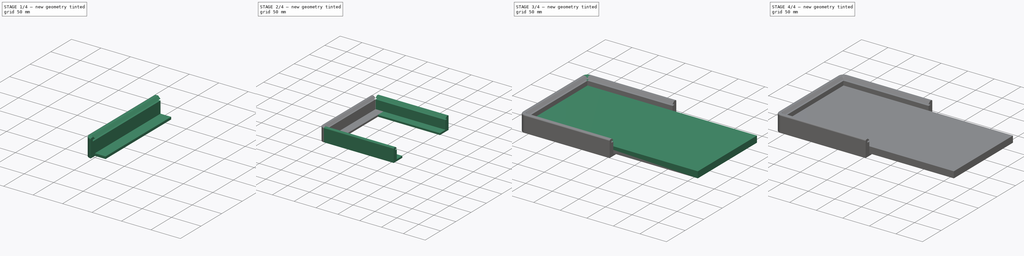
[diagram: build sequence overview — one tinted view per stage of 4, left to right]
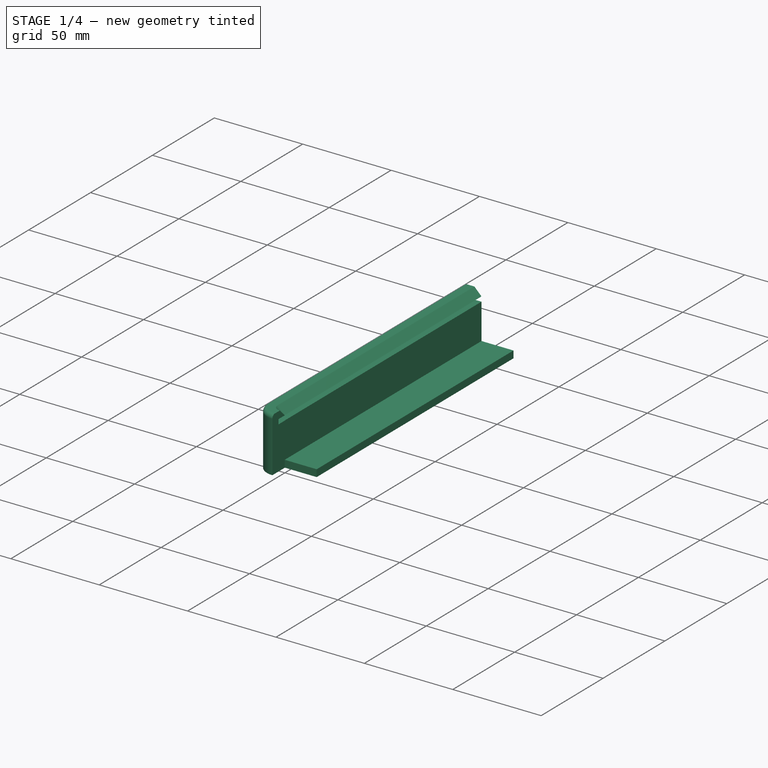
[diagram: stage 1 of 4 — iso view after this stage's code; geometry added in this stage tinted green]
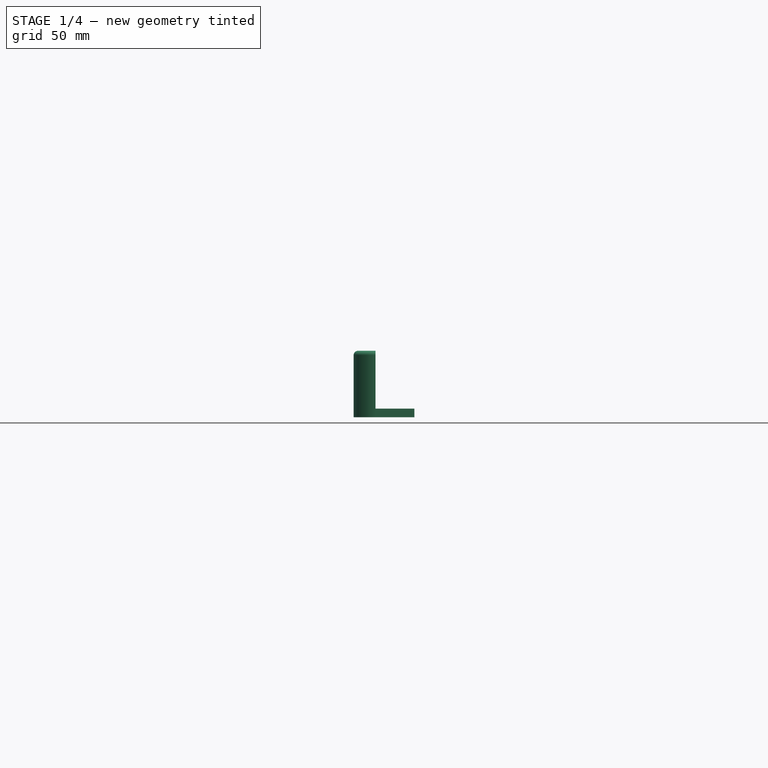
[diagram: stage 1 of 4 — front view after this stage's code; geometry added in this stage tinted green]
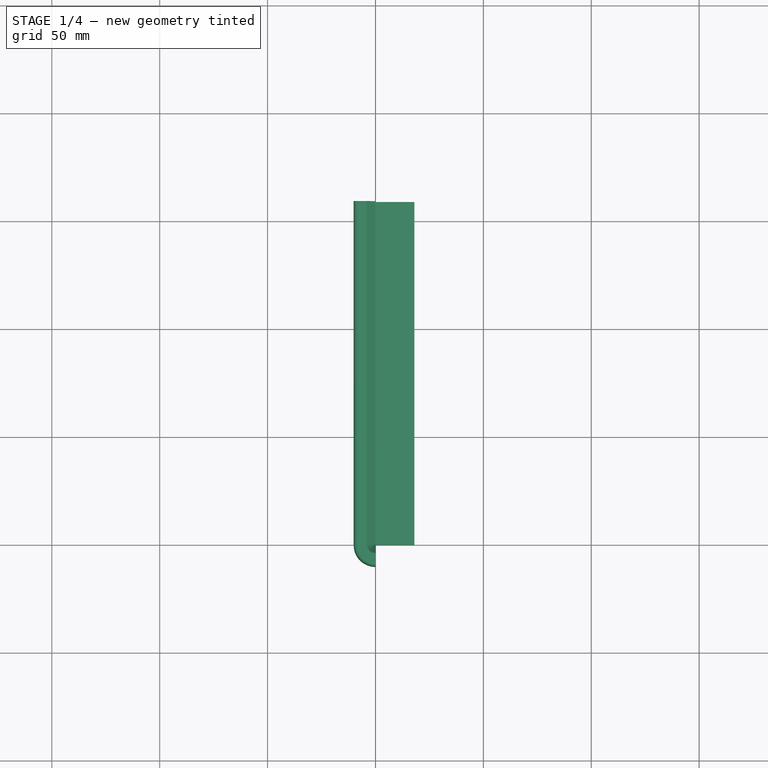
[diagram: stage 1 of 4 — top view after this stage's code; geometry added in this stage tinted green]
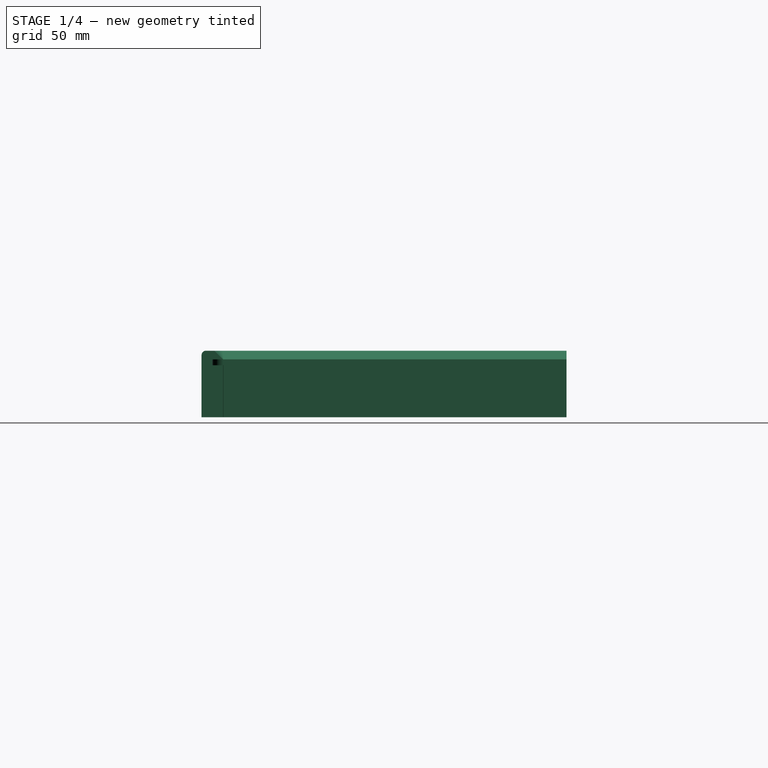
[diagram: stage 1 of 4 — right view after this stage's code; geometry added in this stage tinted green]
FCSTD DOCUMENT  (FreeCAD 0.18R4 (GitTag))
Label: TAM TAM encadrement
License: All rights reserved
LicenseURL: http://en.wikipedia.org/wiki/All_rights_reserved
objects: Sketcher::SketchObject×9, PartDesign::Pad×4, PartDesign::Pocket×3, PartDesign::Body×2, PartDesign::Revolution×2, Spreadsheet::Sheet×1
note: 29 computed .brp shape members not serialized (recipe doc carries the construction recipe); baked Part::Feature solids carry a one-line shape summary decoded from their .brp

FEATURE [PartDesign::Body] Body  label="Ecran002"
  Group = -> [Sketch,Pad,Sketch001,Pocket,Sketch002,Pocket001]
  Origin = -> Origin
  Tip = -> Pocket001
FEATURE [Spreadsheet::Sheet] Spreadsheet  label="Dim"
  cells = A1=Marge verti; B1==0.1mm; A2=Marge horiz; B2==0.1mm; A3=Hauteur grille; B3==8mm; A4=Epaisseur plexi; B4==2.5mm; A5=Débord plexi; B5==5mm; A6=Trous de vis; A7=- Distance bord horizontal; B7==35.5mm; A8=- Distance bord vertical; B8==70mm; A9=- Distance bord; B9==8mm; A10=- Diamètre; B10==1.5mm; A12=Diamètre trous fixation; B12==2mm
FEATURE [Sketcher::SketchObject] Sketch010  label="Profil bord court"
  MapMode = 5
  Placement = pos=(0,0,0) rot=(1,0,0;1.5708rad)
  Support = -> [XZ_Plane001]
  expr: Constraints[20] = 20mm + Spreadsheet.B1
  expr: Constraints[22] = Spreadsheet.B4 + 2 * Spreadsheet.B1
  expr: Constraints[17] = Spreadsheet.B2
  expr: Constraints[18] = 18mm + Spreadsheet.B2
  expr: Constraints[21] = Spreadsheet.B5
  expr: Constraints[16] = Spreadsheet.B1
  sketch-geometry (11):
    g0: LineSegment StartX=-0.1 StartY=20 StartZ=0 EndX=-0.1 EndY=-0.1 EndZ=0
    g1: LineSegment StartX=-0.1 StartY=-0.1 StartZ=0 EndX=18 EndY=-0.1 EndZ=0
    g2: LineSegment StartX=18 StartY=-0.1 StartZ=0 EndX=18 EndY=-4.1 EndZ=0
    g3: LineSegment StartX=18 StartY=-4.1 StartZ=0 EndX=0.067429 EndY=-4.1 EndZ=0
    g4: LineSegment StartX=-10.1 StartY=-24.1 StartZ=0 EndX=-10.1 EndY=24.7 EndZ=0
    g5: LineSegment StartX=-0.1 StartY=20 StartZ=0 EndX=-5.1 EndY=20 EndZ=0
    g6: LineSegment StartX=-5.1 StartY=20 StartZ=0 EndX=-5.1 EndY=22.7 EndZ=0
    g7: LineSegment StartX=-5.1 StartY=22.7 StartZ=0 EndX=-0.1 EndY=22.7 EndZ=0
    g8: LineSegment StartX=-0.1 StartY=22.7 StartZ=0 EndX=-4.1 EndY=26.7 EndZ=0
    g9: LineSegment StartX=-4.1 StartY=26.7 StartZ=0 EndX=-8.1 EndY=26.7 EndZ=0
    g10: ArcOfCircle CenterX=-8.1 CenterY=24.7 CenterZ=0 NormalX=0 NormalY=0 NormalZ=1 AngleXU=0 Radius=2 StartAngle=1.5708 EndAngle=3.14159
  constraints (34):
    c: Coincident(g0,g1)
    c: Coincident(g1,g2)
    c: Coincident(g2,g3)
    c: Coincident(g5,g6)
    c: Coincident(g6,g7)
    c: Coincident(g7,g8)
    c: Coincident(g8,g9)
    c: Vertical(g0)
    c: Vertical(g4)
    c: Vertical(g6)
    c: Vertical(g2)
    c: Horizontal(g5)
    c: Horizontal(g7)
    c: Horizontal(g9)
    c: Horizontal(g1)
    c: Horizontal(g3)
    c: DistanceY(g0,g-1) = 0.1
    c: DistanceX(g0,g-1) = 0.1
    c: DistanceX(g1,g1) = 18.1
    c: Coincident(g0,g5)
    c: DistanceY(g0,g0) = 20.1
    c: DistanceX(g5,g5) = 5
    c: DistanceY(g6,g6) = 2.7
    c: Vertical(g7,g0)
    c: DistanceX(g8,g8) = 4
    c: DistanceY(g8,g8) = 4
    c: DistanceY(g2,g2) = 4
    c: Vertical(g10,g10)
    c: Coincident(g9,g10)
    c: Coincident(g10,g4)
    c: DistanceX(g9,g9) = 4
    c: DistanceX(g4,g10) = 2
    c: Horizontal(g10,g4)
    c: DistanceY(g4,g2) = 20
FEATURE [PartDesign::Pad] Pad001
  Length = 159
  Length2 = 100
  Placement = pos=(0,0,0) rot=(1,0,0;1.5708rad)
  Profile = -> Sketch010
  Reversed = true
  Type = 0
FEATURE [Sketcher::SketchObject] Sketch011  label="Profil angle"
  ExternalGeometry = -> [Pad001]
  MapMode = 5
  Placement = pos=(0,0,0) rot=(1,0,0;1.5708rad)
  Support = -> [XZ_Plane001]
  expr: Constraints[13] = 24mm + Spreadsheet.B1
  expr: Constraints[15] = Spreadsheet.B4 + 2 * Spreadsheet.B1
  expr: Constraints[11] = Spreadsheet.B2
  expr: Constraints[14] = Spreadsheet.B5
  sketch-geometry (9):
    g0: LineSegment StartX=-0.1 StartY=20 StartZ=0 EndX=-0.1 EndY=-4.1 EndZ=0
    g1: LineSegment StartX=-0.1 StartY=-4.1 StartZ=0 EndX=-10.1 EndY=-4.1 EndZ=0
    g2: LineSegment StartX=-10.1 StartY=-4.1 StartZ=0 EndX=-10.1 EndY=24.7 EndZ=0
    g3: LineSegment StartX=-0.1 StartY=20 StartZ=0 EndX=-5.1 EndY=20 EndZ=0
    g4: LineSegment StartX=-5.1 StartY=20 StartZ=0 EndX=-5.1 EndY=22.7 EndZ=0
    g5: LineSegment StartX=-5.1 StartY=22.7 StartZ=0 EndX=-0.1 EndY=22.7 EndZ=0
    g6: LineSegment StartX=-0.1 StartY=22.7 StartZ=0 EndX=-4.1 EndY=26.7 EndZ=0
    g7: LineSegment StartX=-4.1 StartY=26.7 StartZ=0 EndX=-8.1 EndY=26.7 EndZ=0
    g8: ArcOfCircle CenterX=-8.1 CenterY=24.7 CenterZ=0 NormalX=0 NormalY=0 NormalZ=1 AngleXU=0 Radius=2 StartAngle=1.5708 EndAngle=3.14159
  constraints (27):
    c: Coincident(g1,g2)
    c: Coincident(g3,g4)
    c: Coincident(g4,g5)
    c: Coincident(g5,g6)
    c: Coincident(g6,g7)
    c: Vertical(g0)
    c: Vertical(g2)
    c: Vertical(g4)
    c: Horizontal(g3)
    c: Horizontal(g5)
    c: Horizontal(g7)
    c: DistanceX(g0,g-1) = 0.1
    c: Coincident(g0,g3)
    c: DistanceY(g0,g0) = 24.1
    c: DistanceX(g3,g3) = 5
    c: DistanceY(g4,g4) = 2.7
    c: Vertical(g5,g0)
    c: DistanceX(g6,g6) = 4
    c: DistanceY(g6,g6) = 4
    c: Vertical(g8,g8)
    c: Coincident(g7,g8)
    c: Coincident(g8,g2)
    c: DistanceX(g7,g7) = 4
    c: Horizontal(g8,g2)
    c: Coincident(g1,g0)
    c: Horizontal(g1)
    c: Coincident(g1,g-3)
FEATURE [PartDesign::Revolution] Revolution
  Angle = 90
  Axis = (0,-2e-16,1)
  Base = (0,0,0)
  BaseFeature = -> Pad001
  Placement = pos=(0,0,0) rot=(1,0,0;1.5708rad)
  Profile = -> Sketch011
  ReferenceAxis = -> Sketch011 [V_Axis]
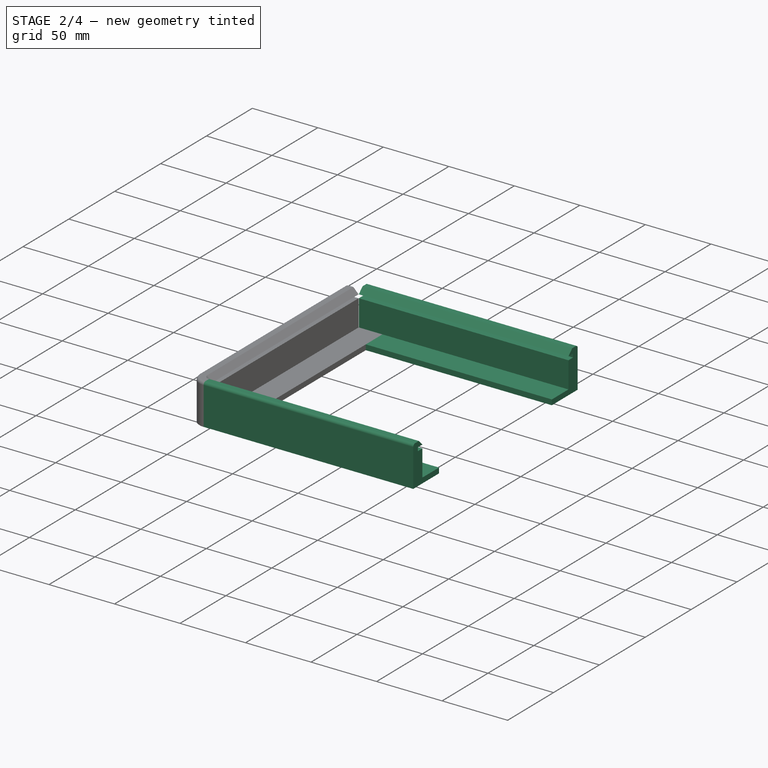
[diagram: stage 2 of 4 — iso view after this stage's code; geometry added in this stage tinted green]
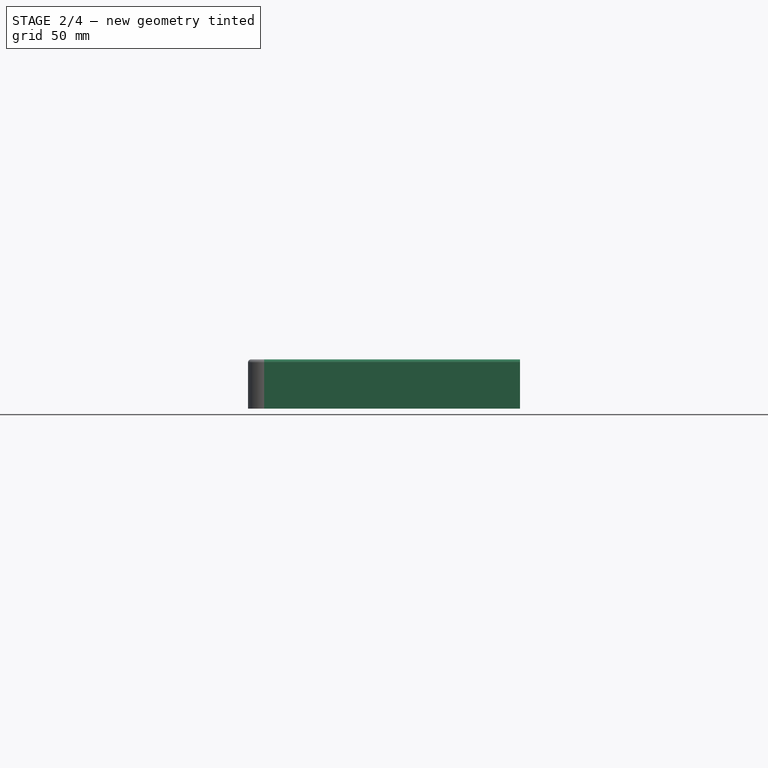
[diagram: stage 2 of 4 — front view after this stage's code; geometry added in this stage tinted green]
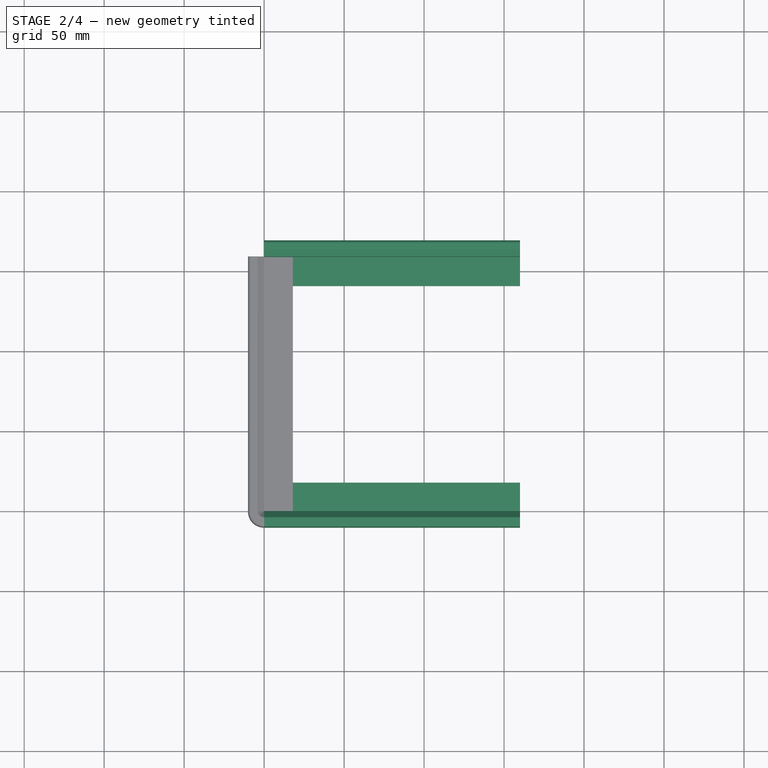
[diagram: stage 2 of 4 — top view after this stage's code; geometry added in this stage tinted green]
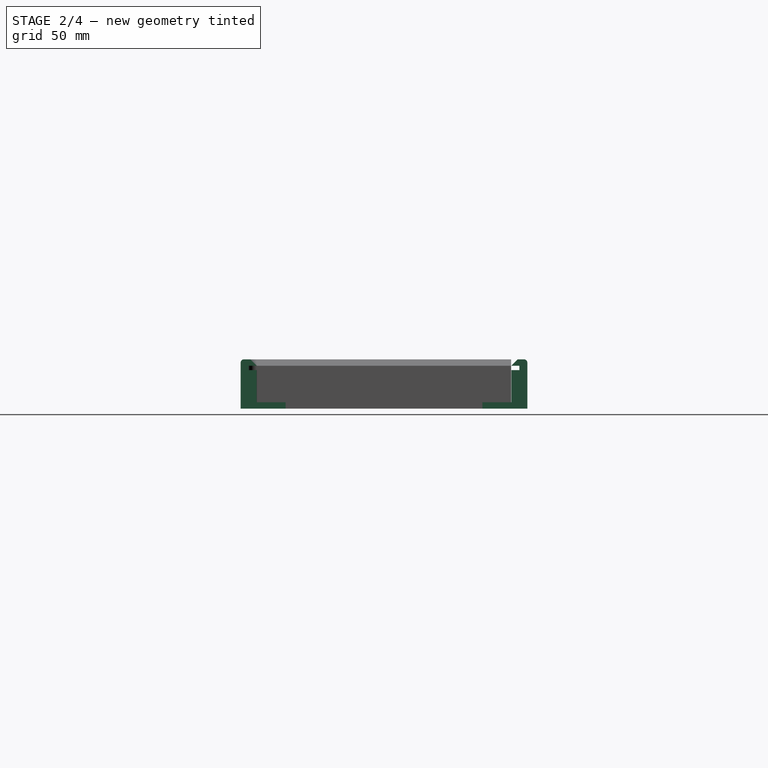
[diagram: stage 2 of 4 — right view after this stage's code; geometry added in this stage tinted green]
FEATURE [Sketcher::SketchObject] Sketch012  label="Profil bord long"
  Placement = pos=(0,0,0) rot=(0.57735,0.57735,0.57735;2.0944rad)
  Support = -> [Revolution]
  expr: Constraints[21] = 20mm + Spreadsheet.B1
  expr: Constraints[23] = Spreadsheet.B4 + 2 * Spreadsheet.B1
  expr: Constraints[19] = 18mm + Spreadsheet.B2
  expr: Constraints[18] = Spreadsheet.B2
  expr: Constraints[22] = Spreadsheet.B5
  expr: Constraints[17] = Spreadsheet.B1
  sketch-geometry (11):
    g0: LineSegment StartX=-0.1 StartY=20 StartZ=0 EndX=-0.1 EndY=-0.1 EndZ=0
    g1: LineSegment StartX=-0.1 StartY=-0.1 StartZ=0 EndX=18 EndY=-0.1 EndZ=0
    g2: LineSegment StartX=18 StartY=-0.1 StartZ=0 EndX=18 EndY=-4.1 EndZ=0
    g3: LineSegment StartX=18 StartY=-4.1 StartZ=0 EndX=-10.1 EndY=-4.1 EndZ=0
    g4: LineSegment StartX=-10.1 StartY=-4.1 StartZ=0 EndX=-10.1 EndY=24.7 EndZ=0
    g5: LineSegment StartX=-0.1 StartY=20 StartZ=0 EndX=-5.1 EndY=20 EndZ=0
    g6: LineSegment StartX=-5.1 StartY=20 StartZ=0 EndX=-5.1 EndY=22.7 EndZ=0
    g7: LineSegment StartX=-5.1 StartY=22.7 StartZ=0 EndX=-0.1 EndY=22.7 EndZ=0
    g8: LineSegment StartX=-0.1 StartY=22.7 StartZ=0 EndX=-4.1 EndY=26.7 EndZ=0
    g9: LineSegment StartX=-4.1 StartY=26.7 StartZ=0 EndX=-8.1 EndY=26.7 EndZ=0
    g10: ArcOfCircle CenterX=-8.1 CenterY=24.7 CenterZ=0 NormalX=0 NormalY=0 NormalZ=1 AngleXU=0 Radius=2 StartAngle=1.5708 EndAngle=3.14159
  constraints (34):
    c: Coincident(g0,g1)
    c: Coincident(g1,g2)
    c: Coincident(g2,g3)
    c: Coincident(g3,g4)
    c: Coincident(g5,g6)
    c: Coincident(g6,g7)
    c: Coincident(g7,g8)
    c: Coincident(g8,g9)
    c: Vertical(g0)
    c: Vertical(g4)
    c: Vertical(g6)
    c: Vertical(g2)
    c: Horizontal(g5)
    c: Horizontal(g7)
    c: Horizontal(g9)
    c: Horizontal(g1)
    c: Horizontal(g3)
    c: DistanceY(g0,g-1) = 0.1
    c: DistanceX(g0,g-1) = 0.1
    c: DistanceX(g1,g1) = 18.1
    c: Coincident(g0,g5)
    c: DistanceY(g0,g0) = 20.1
    c: DistanceX(g5,g5) = 5
    c: DistanceY(g6,g6) = 2.7
    c: Vertical(g7,g0)
    c: DistanceX(g8,g8) = 4
    c: DistanceY(g8,g8) = 4
    c: DistanceY(g2,g2) = 4
    c: Vertical(g10,g10)
    c: Coincident(g9,g10)
    c: Coincident(g10,g4)
    c: DistanceX(g9,g9) = 4
    c: DistanceX(g4,g10) = 2
    c: Horizontal(g10,g4)
FEATURE [PartDesign::Pad] Pad002  label="Bord long"
  BaseFeature = -> Revolution
  Length = 160
  Length2 = 100
  Placement = pos=(0,0,0) rot=(1,0,0;1.5708rad)
  Profile = -> Sketch012
  Type = 0
FEATURE [Sketcher::SketchObject] Sketch013  label="Profil bord long opposé"
  Placement = pos=(0,159,0) rot=(0.57735,-0.57735,-0.57735;2.0944rad)
  Support = -> [XZ_Plane001]
  expr: Constraints[21] = 20mm + Spreadsheet.B1
  expr: Constraints[23] = Spreadsheet.B4 + 2 * Spreadsheet.B1
  expr: Constraints[19] = 18mm + Spreadsheet.B2
  expr: Constraints[18] = Spreadsheet.B2
  expr: Constraints[22] = Spreadsheet.B5
  expr: Constraints[17] = Spreadsheet.B1
  sketch-geometry (11):
    g0: LineSegment StartX=-0.1 StartY=20 StartZ=0 EndX=-0.1 EndY=-0.1 EndZ=0
    g1: LineSegment StartX=-0.1 StartY=-0.1 StartZ=0 EndX=18 EndY=-0.1 EndZ=0
    g2: LineSegment StartX=18 StartY=-0.1 StartZ=0 EndX=18 EndY=-4.1 EndZ=0
    g3: LineSegment StartX=18 StartY=-4.1 StartZ=0 EndX=-10.1 EndY=-4.1 EndZ=0
    g4: LineSegment StartX=-10.1 StartY=-4.1 StartZ=0 EndX=-10.1 EndY=24.7 EndZ=0
    g5: LineSegment StartX=-0.1 StartY=20 StartZ=0 EndX=-5.1 EndY=20 EndZ=0
    g6: LineSegment StartX=-5.1 StartY=20 StartZ=0 EndX=-5.1 EndY=22.7 EndZ=0
    g7: LineSegment StartX=-5.1 StartY=22.7 StartZ=0 EndX=-0.1 EndY=22.7 EndZ=0
    g8: LineSegment StartX=-0.1 StartY=22.7 StartZ=0 EndX=-4.1 EndY=26.7 EndZ=0
    g9: LineSegment StartX=-4.1 StartY=26.7 StartZ=0 EndX=-8.1 EndY=26.7 EndZ=0
    g10: ArcOfCircle CenterX=-8.1 CenterY=24.7 CenterZ=0 NormalX=0 NormalY=0 NormalZ=1 AngleXU=0 Radius=2 StartAngle=1.5708 EndAngle=3.14159
  constraints (34):
    c: Coincident(g0,g1)
    c: Coincident(g1,g2)
    c: Coincident(g2,g3)
    c: Coincident(g3,g4)
    c: Coincident(g5,g6)
    c: Coincident(g6,g7)
    c: Coincident(g7,g8)
    c: Coincident(g8,g9)
    c: Vertical(g0)
    c: Vertical(g4)
    c: Vertical(g6)
    c: Vertical(g2)
    c: Horizontal(g5)
    c: Horizontal(g7)
    c: Horizontal(g9)
    c: Horizontal(g1)
    c: Horizontal(g3)
    c: DistanceY(g0,g-1) = 0.1
    c: DistanceX(g0,g-1) = 0.1
    c: DistanceX(g1,g1) = 18.1
    c: Coincident(g0,g5)
    c: DistanceY(g0,g0) = 20.1
    c: DistanceX(g5,g5) = 5
    c: DistanceY(g6,g6) = 2.7
    c: Vertical(g7,g0)
    c: DistanceX(g8,g8) = 4
    c: DistanceY(g8,g8) = 4
    c: DistanceY(g2,g2) = 4
    c: Vertical(g10,g10)
    c: Coincident(g9,g10)
    c: Coincident(g10,g4)
    c: DistanceX(g9,g9) = 4
    c: DistanceX(g4,g10) = 2
    c: Horizontal(g10,g4)
FEATURE [PartDesign::Pad] Pad003
  BaseFeature = -> Pad002
  Length = 160
  Length2 = 100
  Placement = pos=(0,0,0) rot=(1,0,0;1.5708rad)
  Profile = -> Sketch013
  Reversed = true
  Type = 0
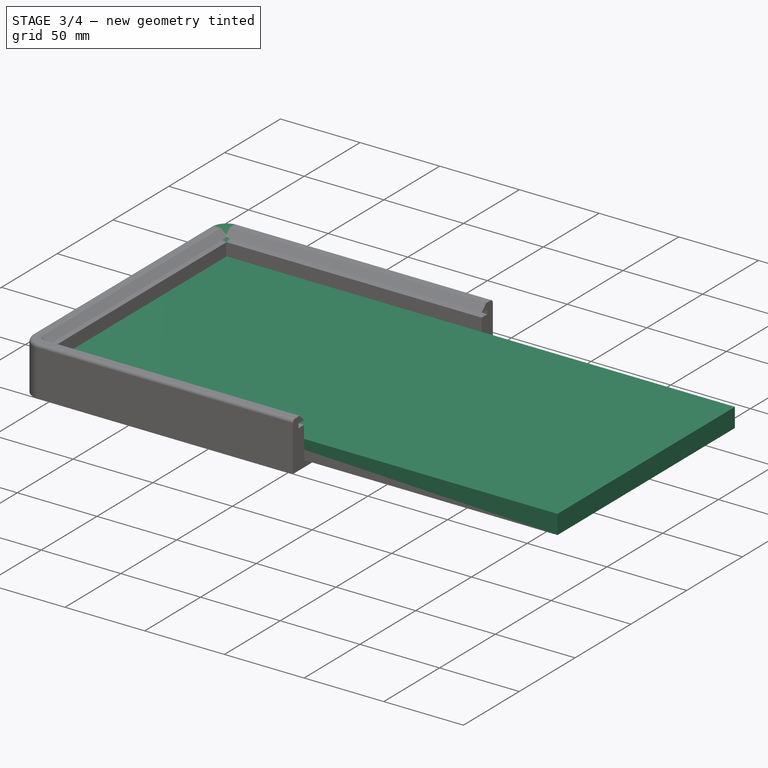
[diagram: stage 3 of 4 — iso view after this stage's code; geometry added in this stage tinted green]
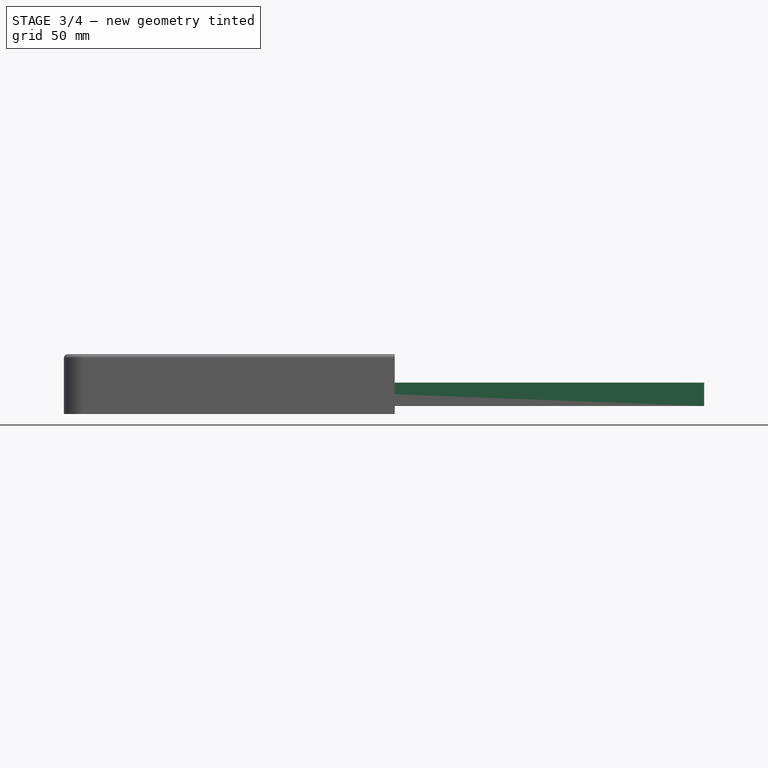
[diagram: stage 3 of 4 — front view after this stage's code; geometry added in this stage tinted green]
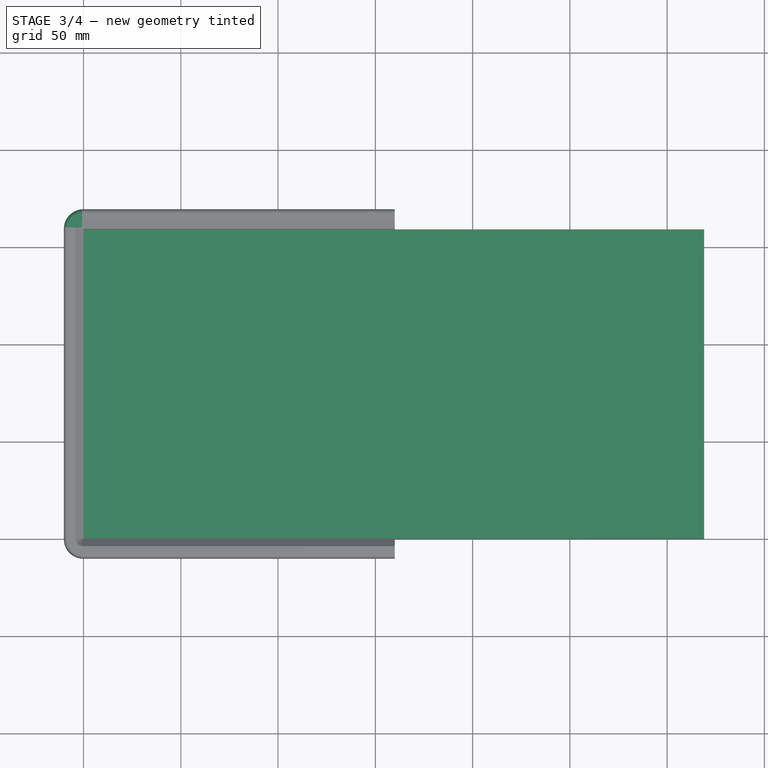
[diagram: stage 3 of 4 — top view after this stage's code; geometry added in this stage tinted green]
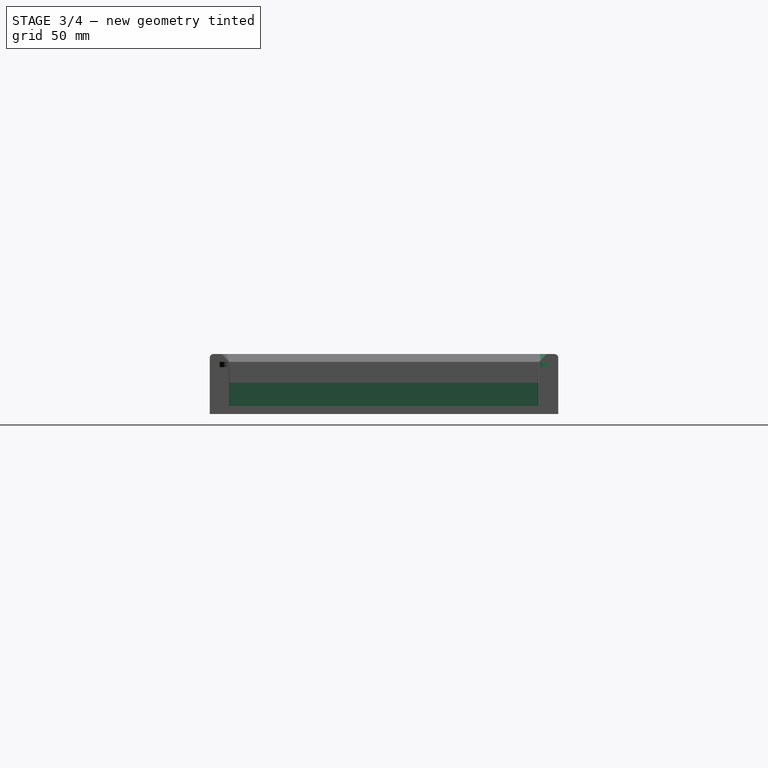
[diagram: stage 3 of 4 — right view after this stage's code; geometry added in this stage tinted green]
FEATURE [Sketcher::SketchObject] Sketch  label="Ecran001"
  MapMode = 5
  Support = -> [XY_Plane]
  sketch-geometry (4):
    g0: LineSegment StartX=0 StartY=0 StartZ=0 EndX=319 EndY=0 EndZ=0
    g1: LineSegment StartX=319 StartY=0 StartZ=0 EndX=319 EndY=159 EndZ=0
    g2: LineSegment StartX=319 StartY=159 StartZ=0 EndX=0 EndY=159 EndZ=0
    g3: LineSegment StartX=0 StartY=159 StartZ=0 EndX=0 EndY=0 EndZ=0
  constraints (11):
    c: Coincident(g0,g1)
    c: Coincident(g1,g2)
    c: Coincident(g2,g3)
    c: Coincident(g3,g0)
    c: Horizontal(g0)
    c: Horizontal(g2)
    c: Vertical(g1)
    c: Vertical(g3)
    c: DistanceY(g1,g1) = 159
    c: DistanceX(g2,g2) = 319
    c: Coincident(g0,g-1)
FEATURE [PartDesign::Pad] Pad  label="Ecran"
  Length = 12
  Length2 = 100
  Profile = -> Sketch
  Type = 0
FEATURE [Sketcher::SketchObject] Sketch001  label="Composants"
  MapMode = 5
  Placement = pos=(0,0,0) rot=(1,0,0;3.14159rad)
  Support = -> [Pad]
  expr: Constraints[11] = 159 - 28
  expr: Constraints[10] = 319 - 28
  sketch-geometry (4):
    g0: LineSegment StartX=14 StartY=-14 StartZ=0 EndX=305 EndY=-14 EndZ=0
    g1: LineSegment StartX=305 StartY=-14 StartZ=0 EndX=305 EndY=-145 EndZ=0
    g2: LineSegment StartX=305 StartY=-145 StartZ=0 EndX=14 EndY=-145 EndZ=0
    g3: LineSegment StartX=14 StartY=-145 StartZ=0 EndX=14 EndY=-14 EndZ=0
  constraints (12):
    c: Coincident(g0,g1)
    c: Coincident(g1,g2)
    c: Coincident(g2,g3)
    c: Coincident(g3,g0)
    c: Horizontal(g0)
    c: Horizontal(g2)
    c: Vertical(g1)
    c: Vertical(g3)
    c: DistanceY(g0,g-1) = 14
    c: DistanceX(g-1,g0) = 14
    c: DistanceX(g2,g1) = 291
    c: DistanceY(g1,g0) = 131
FEATURE [PartDesign::Pocket] Pocket  label="Creux arrière"
  BaseFeature = -> Pad
  Length = 10
  Length2 = 100
  Profile = -> Sketch001
  Type = 0
FEATURE [Sketcher::SketchObject] Sketch014  label="Profil angle001"
  ExternalGeometry = -> [Pad001]
  Placement = pos=(0,159,0) rot=(1,0,0;1.5708rad)
  Support = -> [XZ_Plane001]
  expr: Constraints[13] = 24mm + Spreadsheet.B1
  expr: Constraints[15] = Spreadsheet.B4 + 2 * Spreadsheet.B1
  expr: Constraints[11] = Spreadsheet.B2
  expr: Constraints[14] = Spreadsheet.B5
  sketch-geometry (9):
    g0: LineSegment StartX=-0.1 StartY=20 StartZ=0 EndX=-0.1 EndY=-4.1 EndZ=0
    g1: LineSegment StartX=-0.1 StartY=-4.1 StartZ=0 EndX=-10.1 EndY=-4.1 EndZ=0
    g2: LineSegment StartX=-10.1 StartY=-4.1 StartZ=0 EndX=-10.1 EndY=24.7 EndZ=0
    g3: LineSegment StartX=-0.1 StartY=20 StartZ=0 EndX=-5.1 EndY=20 EndZ=0
    g4: LineSegment StartX=-5.1 StartY=20 StartZ=0 EndX=-5.1 EndY=22.7 EndZ=0
    g5: LineSegment StartX=-5.1 StartY=22.7 StartZ=0 EndX=-0.1 EndY=22.7 EndZ=0
    g6: LineSegment StartX=-0.1 StartY=22.7 StartZ=0 EndX=-4.1 EndY=26.7 EndZ=0
    g7: LineSegment StartX=-4.1 StartY=26.7 StartZ=0 EndX=-8.1 EndY=26.7 EndZ=0
    g8: ArcOfCircle CenterX=-8.1 CenterY=24.7 CenterZ=0 NormalX=0 NormalY=0 NormalZ=1 AngleXU=0 Radius=2 StartAngle=1.5708 EndAngle=3.14159
  constraints (27):
    c: Coincident(g1,g2)
    c: Coincident(g3,g4)
    c: Coincident(g4,g5)
    c: Coincident(g5,g6)
    c: Coincident(g6,g7)
    c: Vertical(g0)
    c: Vertical(g2)
    c: Vertical(g4)
    c: Horizontal(g3)
    c: Horizontal(g5)
    c: Horizontal(g7)
    c: DistanceX(g0,g-1) = 0.1
    c: Coincident(g0,g3)
    c: DistanceY(g0,g0) = 24.1
    c: DistanceX(g3,g3) = 5
    c: DistanceY(g4,g4) = 2.7
    c: Vertical(g5,g0)
    c: DistanceX(g6,g6) = 4
    c: DistanceY(g6,g6) = 4
    c: Vertical(g8,g8)
    c: Coincident(g7,g8)
    c: Coincident(g8,g2)
    c: DistanceX(g7,g7) = 4
    c: Horizontal(g8,g2)
    c: Coincident(g1,g0)
    c: Horizontal(g1)
    c: Coincident(g1,g-3)
FEATURE [PartDesign::Revolution] Revolution001
  Angle = 90
  Axis = (0,2e-16,1)
  Base = (0,159,0)
  BaseFeature = -> Pad003
  Placement = pos=(0,0,0) rot=(1,0,0;1.5708rad)
  Profile = -> Sketch014
  ReferenceAxis = -> Sketch014 [V_Axis]
  Reversed = true
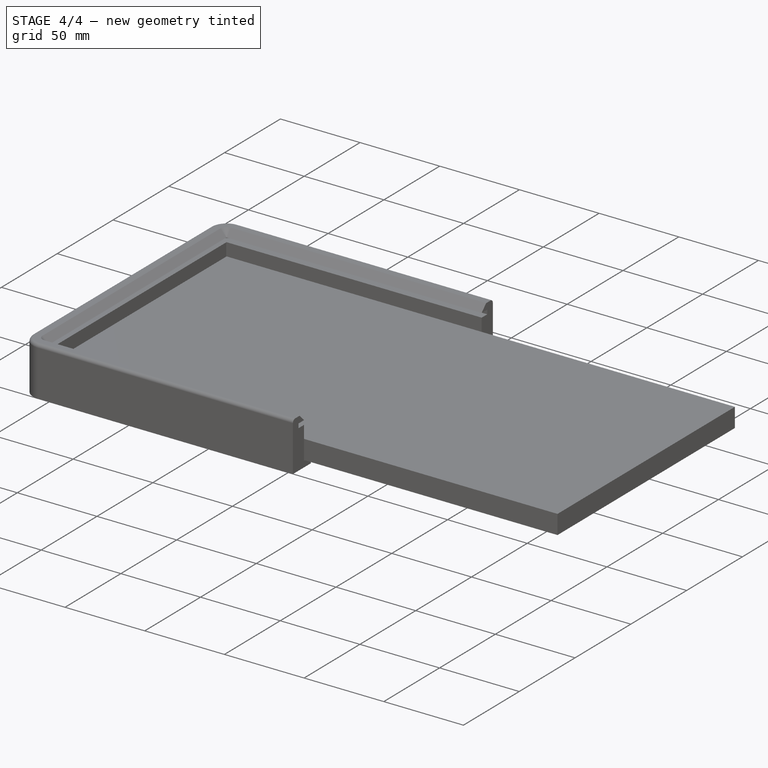
[diagram: stage 4 of 4 — iso view after this stage's code; geometry added in this stage tinted green]
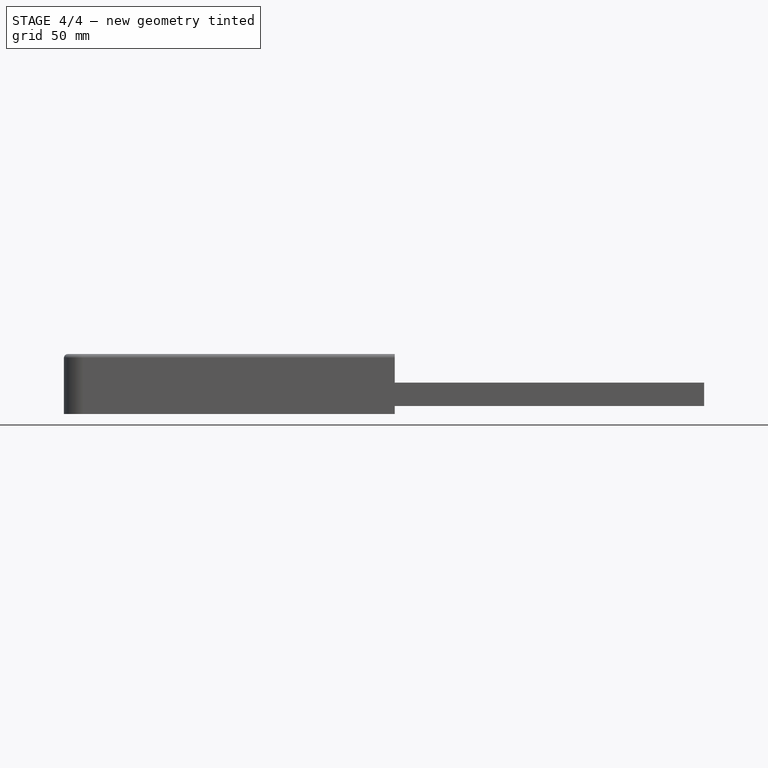
[diagram: stage 4 of 4 — front view after this stage's code; geometry added in this stage tinted green]
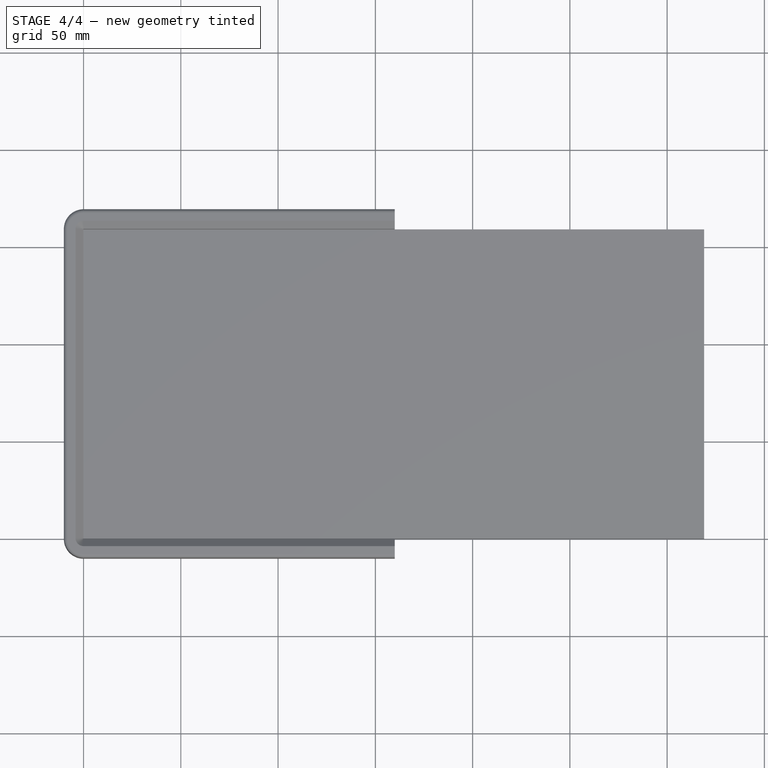
[diagram: stage 4 of 4 — top view after this stage's code; geometry added in this stage tinted green]
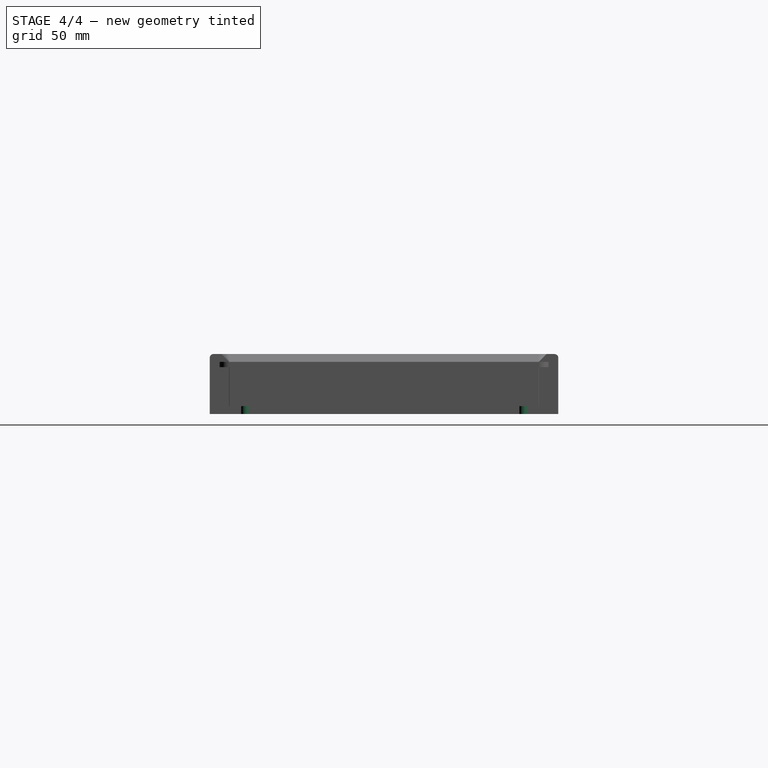
[diagram: stage 4 of 4 — right view after this stage's code; geometry added in this stage tinted green]
FEATURE [Sketcher::SketchObject] Sketch002  label="Trous de vis001"
  ExternalGeometry = -> [Pocket]
  MapMode = 5
  Placement = pos=(0,0,0) rot=(1,0,0;3.14159rad)
  Support = -> [Pocket]
  expr: Constraints[21] = Dim.B7
  expr: Constraints[19] = Dim.B10
  expr: Constraints[14] = Dim.B10
  expr: Constraints[22] = Dim.B10
  expr: Constraints[27] = Dim.B9
  expr: Constraints[17] = Dim.B7
  expr: Constraints[11] = Dim.B10
  expr: Constraints[16] = Dim.B10
  expr: Constraints[8] = Dim.B10
  expr: Constraints[1] = Dim.B8
  expr: Constraints[12] = Dim.B10
  expr: Constraints[7] = Dim.B8
  expr: Constraints[3] = Dim.B10
  expr: Constraints[2] = Dim.B9
  expr: Constraints[5] = Dim.B9
  expr: Constraints[18] = Dim.B9
  expr: Constraints[0] = Dim.B10
  sketch-geometry (10):
    g0: Circle CenterX=70 CenterY=-8 CenterZ=0 NormalX=0 NormalY=0 NormalZ=1 AngleXU=0 Radius=1.5
    g1: Circle CenterX=70 CenterY=-151 CenterZ=0 NormalX=0 NormalY=0 NormalZ=1 AngleXU=0 Radius=1.5
    g2: Circle CenterX=249 CenterY=-8 CenterZ=0 NormalX=0 NormalY=0 NormalZ=1 AngleXU=0 Radius=1.5
    g3: Circle CenterX=249 CenterY=-151 CenterZ=0 NormalX=0 NormalY=0 NormalZ=1 AngleXU=0 Radius=1.5
    g4: Circle CenterX=159.5 CenterY=-8 CenterZ=0 NormalX=0 NormalY=0 NormalZ=1 AngleXU=0 Radius=1.5
    g5: Circle CenterX=159.5 CenterY=-151 CenterZ=0 NormalX=0 NormalY=0 NormalZ=1 AngleXU=0 Radius=1.5
    g6: Circle CenterX=8 CenterY=-35.5 CenterZ=0 NormalX=0 NormalY=0 NormalZ=1 AngleXU=0 Radius=1.5
    g7: Circle CenterX=8 CenterY=-123.5 CenterZ=0 NormalX=0 NormalY=0 NormalZ=1 AngleXU=0 Radius=1.5
    g8: Circle CenterX=311 CenterY=-35.5 CenterZ=0 NormalX=0 NormalY=0 NormalZ=1 AngleXU=0 Radius=1.5
    g9: Circle CenterX=311 CenterY=-123.5 CenterZ=0 NormalX=0 NormalY=0 NormalZ=1 AngleXU=0 Radius=1.5
  constraints (28):
    c: Radius(g0) = 1.5
    c: DistanceX(g-1,g0) = 70
    c: DistanceY(g0,g-1) = 8
    c: Radius(g1) = 1.5
    c: Vertical(g1,g0)
    c: DistanceY(g-6,g1) = 8
    c: Horizontal(g0,g2)
    c: DistanceX(g2,g-5) = 70
    c: Radius(g2) = 1.5
    c: Vertical(g3,g2)
    c: Horizontal(g3,g1)
    c: Radius(g3) = 1.5
    c: Radius(g4) = 1.5
    c: Symmetric(g0,g2,g4)
    c: Radius(g5) = 1.5
    c: Symmetric(g3,g1,g5)
    c: Radius(g6) = 1.5
    c: DistanceY(g6,g-1) = 35.5
    c: DistanceX(g-1,g6) = 8
    c: Radius(g7) = 1.5
    c: Vertical(g7,g6)
    c: DistanceY(g-6,g7) = 35.5
    c: Radius(g9) = 1.5
    c: Equal(g9,g8)
    c: Horizontal(g9,g7)
    c: Horizontal(g6,g8)
    c: Vertical(g8,g9)
    c: DistanceX(g9,g-6) = 8
FEATURE [PartDesign::Pocket] Pocket001  label="Trous de vis"
  BaseFeature = -> Pocket
  Length = 10
  Length2 = 100
  Profile = -> Sketch002
  Type = 0
FEATURE [Sketcher::SketchObject] Sketch015  label="Trous de vis002"
  ExternalGeometry = -> [Pocket]
  MapMode = 5
  Placement = pos=(0,0,-4.1) rot=(1,0,0;3.14159rad)
  Support = -> [Revolution001]
  expr: Constraints[21] = Dim.B7
  expr: Constraints[19] = Dim.B12
  expr: Constraints[22] = Dim.B12
  expr: Constraints[14] = Dim.B12
  expr: Constraints[17] = Dim.B7
  expr: Constraints[27] = Dim.B9
  expr: Constraints[11] = Dim.B12
  expr: Constraints[16] = Dim.B12
  expr: Constraints[8] = Dim.B12
  expr: Constraints[12] = Dim.B12
  expr: Constraints[1] = Dim.B8
  expr: Constraints[7] = Dim.B8
  expr: Constraints[3] = Dim.B12
  expr: Constraints[5] = Dim.B9
  expr: Constraints[2] = Dim.B9
  expr: Constraints[0] = Dim.B12
  expr: Constraints[18] = Dim.B9
  sketch-geometry (10):
    g0: Circle CenterX=70 CenterY=-8 CenterZ=0 NormalX=0 NormalY=0 NormalZ=1 AngleXU=0 Radius=2
    g1: Circle CenterX=70 CenterY=-151 CenterZ=0 NormalX=0 NormalY=0 NormalZ=1 AngleXU=0 Radius=2
    g2: Circle CenterX=249 CenterY=-8 CenterZ=0 NormalX=0 NormalY=0 NormalZ=1 AngleXU=0 Radius=2
    g3: Circle CenterX=249 CenterY=-151 CenterZ=0 NormalX=0 NormalY=0 NormalZ=1 AngleXU=0 Radius=2
    g4: Circle CenterX=159.5 CenterY=-8 CenterZ=0 NormalX=0 NormalY=0 NormalZ=1 AngleXU=0 Radius=2
    g5: Circle CenterX=159.5 CenterY=-151 CenterZ=0 NormalX=0 NormalY=0 NormalZ=1 AngleXU=0 Radius=2
    g6: Circle CenterX=8 CenterY=-35.5 CenterZ=0 NormalX=0 NormalY=0 NormalZ=1 AngleXU=0 Radius=2
    g7: Circle CenterX=8 CenterY=-123.5 CenterZ=0 NormalX=0 NormalY=0 NormalZ=1 AngleXU=0 Radius=2
    g8: Circle CenterX=311 CenterY=-35.5 CenterZ=0 NormalX=0 NormalY=0 NormalZ=1 AngleXU=0 Radius=2
    g9: Circle CenterX=311 CenterY=-123.5 CenterZ=0 NormalX=0 NormalY=0 NormalZ=1 AngleXU=0 Radius=2
  constraints (28):
    c: Radius(g0) = 2
    c: DistanceX(g-1,g0) = 70
    c: DistanceY(g0,g-1) = 8
    c: Radius(g1) = 2
    c: Vertical(g1,g0)
    c: DistanceY(g-6,g1) = 8
    c: Horizontal(g0,g2)
    c: DistanceX(g2,g-5) = 70
    c: Radius(g2) = 2
    c: Vertical(g3,g2)
    c: Horizontal(g3,g1)
    c: Radius(g3) = 2
    c: Radius(g4) = 2
    c: Symmetric(g0,g2,g4)
    c: Radius(g5) = 2
    c: Symmetric(g3,g1,g5)
    c: Radius(g6) = 2
    c: DistanceY(g6,g-1) = 35.5
    c: DistanceX(g-1,g6) = 8
    c: Radius(g7) = 2
    c: Vertical(g7,g6)
    c: DistanceY(g-6,g7) = 35.5
    c: Radius(g9) = 2
    c: Equal(g9,g8)
    c: Horizontal(g9,g7)
    c: Horizontal(g6,g8)
    c: Vertical(g8,g9)
    c: DistanceX(g9,g-6) = 8
FEATURE [PartDesign::Pocket] Pocket002
  BaseFeature = -> Revolution001
  Length = 5
  Length2 = 100
  Placement = pos=(0,0,0) rot=(1,0,0;1.5708rad)
  Profile = -> Sketch015
  Type = 1
FEATURE [PartDesign::Body] Body001  label="Encadrement"
  Group = -> [Sketch010,Pad001,Sketch011,Revolution,Sketch012,Pad002,Sketch013,Pad003,Sketch014,Revolution001,Sketch015,Pocket002]
  Origin = -> Origin001
  Tip = -> Pocket002
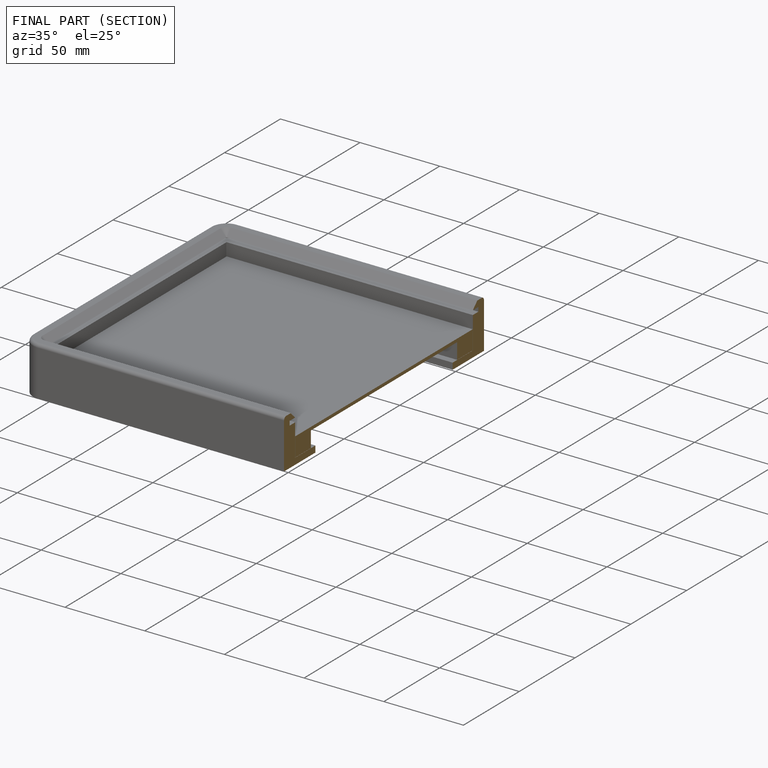
[diagram: finished part — half-section view (interior)]
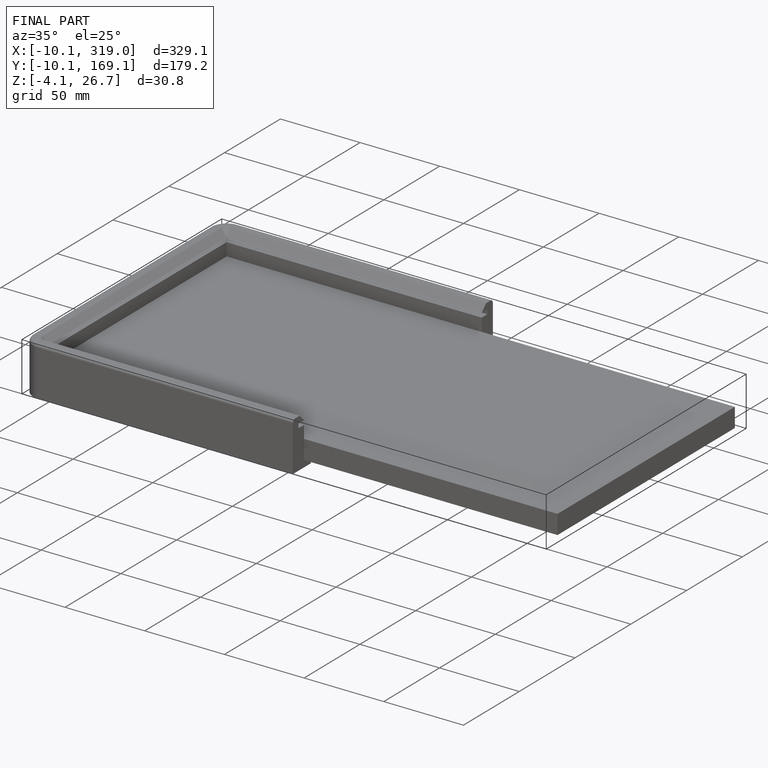
[diagram: finished part — iso view with bounding-box wireframe]
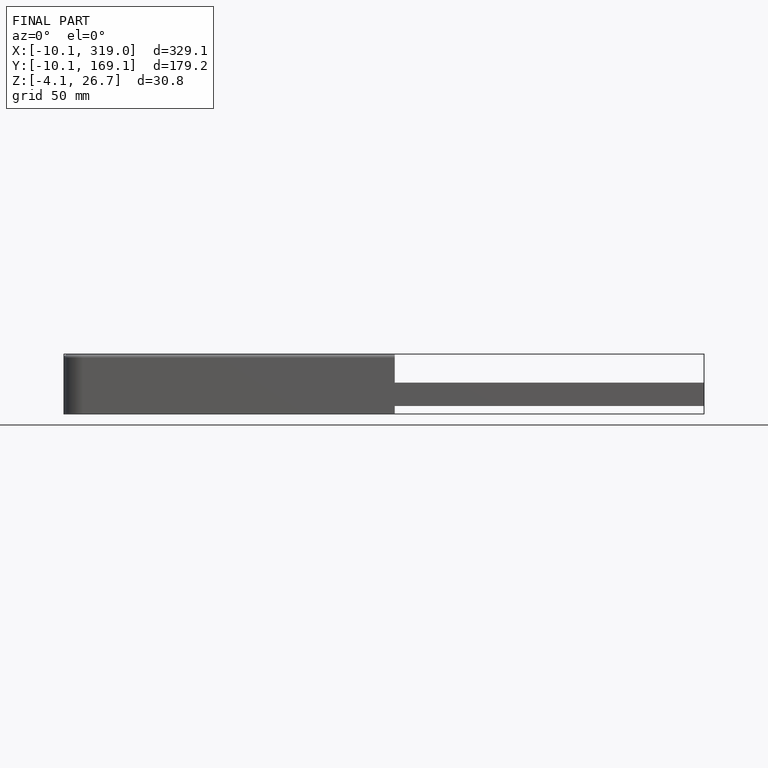
[diagram: finished part — front view with bounding-box wireframe]
